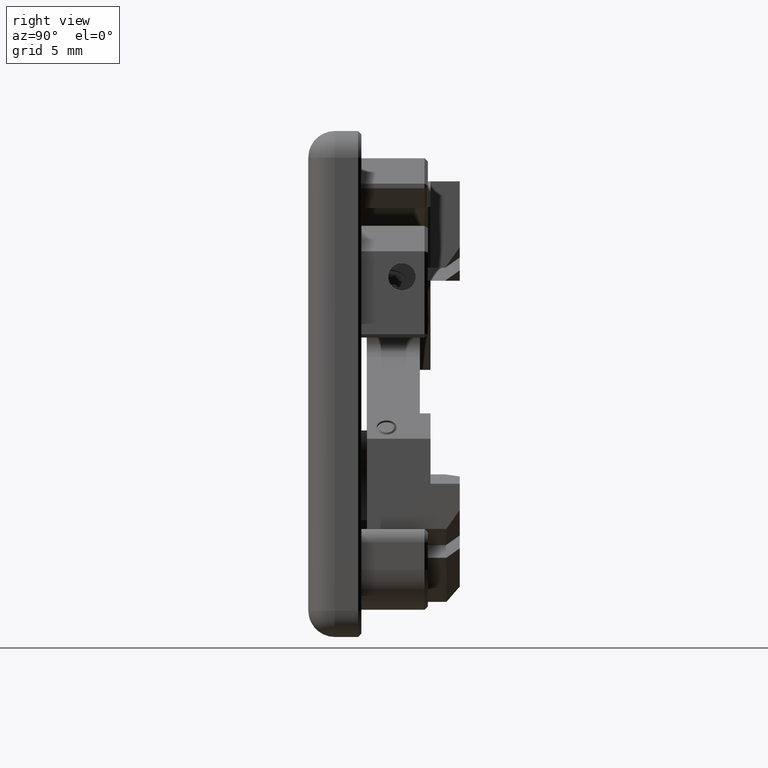
[diagram: clean part render]
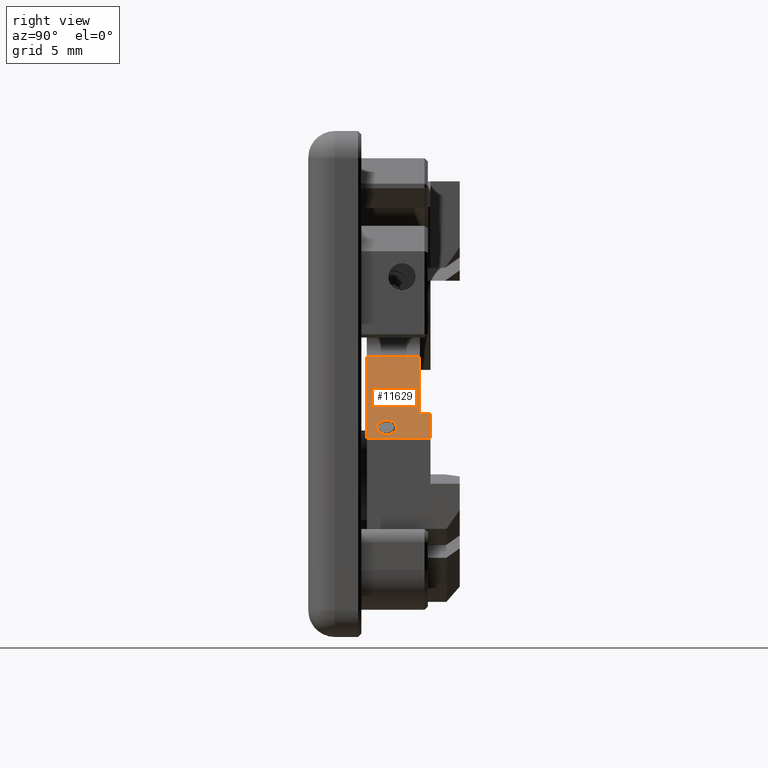
[diagram: same view with one face highlighted and labeled with its STEP entity id]
A machine part, right view. The second image highlights one B-rep face of the part: STEP entity #11629.
In plain terms, the highlighted planar face has unit normal (-0.7071, 0, -0.7071).
Its self-contained STEP definition (entity closure, byte-faithful):
#36 = DIRECTION ( 'NONE',  ( 0.7071067811865474617, 0.000000000000000000, -0.7071067811865474617 ) ) ;
#190 = VECTOR ( 'NONE', #11203, 1000.000000000000000 ) ;
#207 = EDGE_CURVE ( 'NONE', #4128, #1632, #8062, .T. ) ;
#562 = VERTEX_POINT ( 'NONE', #2173 ) ;
#704 = ORIENTED_EDGE ( 'NONE', *, *, #1941, .F. ) ;
#847 = VERTEX_POINT ( 'NONE', #11308 ) ;
#856 = ORIENTED_EDGE ( 'NONE', *, *, #5945, .T. ) ;
#1158 = VERTEX_POINT ( 'NONE', #3201 ) ;
#1224 = AXIS2_PLACEMENT_3D ( 'NONE', #6619, #6529, #8452 ) ;
#1345 = CARTESIAN_POINT ( 'NONE',  ( 15.25455718367402191, 7.200000000000001954, -4.120168620837286966 ) ) ;
#1401 = AXIS2_PLACEMENT_3D ( 'NONE', #10821, #6219, #5309 ) ;
#1482 = CIRCLE ( 'NONE', #1224, 0.7500000000000001110 ) ;
#1632 = VERTEX_POINT ( 'NONE', #1345 ) ;
#1941 = EDGE_CURVE ( 'NONE', #1158, #4793, #8834, .T. ) ;
#1981 = DIRECTION ( 'NONE',  ( -0.7071067811865474617, 0.000000000000000000, 0.7071067811865474617 ) ) ;
#2173 = CARTESIAN_POINT ( 'NONE',  ( 13.87569896036025696, 3.899999999999999911, -2.741310397523514908 ) ) ;
#2299 = ORIENTED_EDGE ( 'NONE', *, *, #7643, .F. ) ;
#3201 = CARTESIAN_POINT ( 'NONE',  ( 9.102728187351058153, 6.400000000000001243, 2.031660375485679904 ) ) ;
#3203 = CARTESIAN_POINT ( 'NONE',  ( 15.25455718367402369, 2.400000000000001688, -4.120168620837281637 ) ) ;
#3299 = EDGE_CURVE ( 'NONE', #3731, #1632, #4704, .T. ) ;
#3396 = DIRECTION ( 'NONE',  ( 0.000000000000000000, 1.000000000000000000, 0.000000000000000000 ) ) ;
#3568 = AXIS2_PLACEMENT_3D ( 'NONE', #10436, #7589, #1981 ) ;
#3731 = VERTEX_POINT ( 'NONE', #3203 ) ;
#3741 = EDGE_LOOP ( 'NONE', ( #6935, #2299 ) ) ;
#3915 = EDGE_LOOP ( 'NONE', ( #11303, #7673, #704, #856, #7197, #6349 ) ) ;
#4041 = LINE ( 'NONE', #10976, #5059 ) ;
#4128 = VERTEX_POINT ( 'NONE', #8077 ) ;
#4382 = CARTESIAN_POINT ( 'NONE',  ( -2.210980311633702122, 6.400000000000001243, 13.34536887447044329 ) ) ;
#4569 = CARTESIAN_POINT ( 'NONE',  ( 9.102728187351058153, 2.400000000000001688, 2.031660375485683012 ) ) ;
#4704 = LINE ( 'NONE', #10365, #8903 ) ;
#4793 = VERTEX_POINT ( 'NONE', #9451 ) ;
#5059 = VECTOR ( 'NONE', #36, 1000.000000000000114 ) ;
#5309 = DIRECTION ( 'NONE',  ( -0.7071067811865472397, 0.000000000000000000, 0.7071067811865477948 ) ) ;
#5413 = DIRECTION ( 'NONE',  ( 0.7071067811865474617, 0.000000000000000000, -0.7071067811865476838 ) ) ;
#5756 = VERTEX_POINT ( 'NONE', #9827 ) ;
#5777 = VECTOR ( 'NONE', #5413, 1000.000000000000000 ) ;
#5867 = EDGE_CURVE ( 'NONE', #847, #562, #1482, .T. ) ;
#5945 = EDGE_CURVE ( 'NONE', #1158, #5756, #7287, .T. ) ;
#6219 = DIRECTION ( 'NONE',  ( 0.7071067811865475727, 0.000000000000000000, 0.7071067811865475727 ) ) ;
#6349 = ORIENTED_EDGE ( 'NONE', *, *, #3299, .T. ) ;
#6458 = PLANE ( 'NONE',  #3568 ) ;
#6529 = DIRECTION ( 'NONE',  ( 0.7071067811865475727, 0.000000000000000000, 0.7071067811865475727 ) ) ;
#6619 = CARTESIAN_POINT ( 'NONE',  ( 14.40602904625016656, 3.899999999999999911, -3.271640483413425393 ) ) ;
#6801 = CARTESIAN_POINT ( 'NONE',  ( 15.25455718367402191, 7.200000000000001954, -4.120168620837286966 ) ) ;
#6935 = ORIENTED_EDGE ( 'NONE', *, *, #5867, .F. ) ;
#7197 = ORIENTED_EDGE ( 'NONE', *, *, #10580, .T. ) ;
#7198 = EDGE_CURVE ( 'NONE', #4793, #4128, #7966, .T. ) ;
#7218 = CARTESIAN_POINT ( 'NONE',  ( 13.34536887447034204, -20.54013949390892435, -2.210980311633604423 ) ) ;
#7287 = LINE ( 'NONE', #4569, #190 ) ;
#7440 = DIRECTION ( 'NONE',  ( 0.000000000000000000, 1.000000000000000000, 0.000000000000000000 ) ) ;
#7589 = DIRECTION ( 'NONE',  ( -0.7071067811865475727, 0.000000000000000000, -0.7071067811865475727 ) ) ;
#7643 = EDGE_CURVE ( 'NONE', #562, #847, #7954, .T. ) ;
#7673 = ORIENTED_EDGE ( 'NONE', *, *, #7198, .F. ) ;
#7909 = FACE_BOUND ( 'NONE', #3741, .T. ) ;
#7954 = CIRCLE ( 'NONE', #1401, 0.7500000000000001110 ) ;
#7966 = LINE ( 'NONE', #7218, #8838 ) ;
#8062 = LINE ( 'NONE', #6801, #8793 ) ;
#8077 = CARTESIAN_POINT ( 'NONE',  ( 13.34536887447034204, 7.200000000000001954, -2.210980311633604423 ) ) ;
#8452 = DIRECTION ( 'NONE',  ( -0.7071067811865472397, 0.000000000000000000, 0.7071067811865477948 ) ) ;
#8773 = FACE_OUTER_BOUND ( 'NONE', #3915, .T. ) ;
#8793 = VECTOR ( 'NONE', #11419, 1000.000000000000000 ) ;
#8834 = LINE ( 'NONE', #4382, #5777 ) ;
#8838 = VECTOR ( 'NONE', #3396, 1000.000000000000000 ) ;
#8903 = VECTOR ( 'NONE', #7440, 1000.000000000000000 ) ;
#9451 = CARTESIAN_POINT ( 'NONE',  ( 13.34536887447034204, 6.400000000000001243, -2.210980311633604423 ) ) ;
#9827 = CARTESIAN_POINT ( 'NONE',  ( 9.102728187351058153, 2.400000000000001688, 2.031660375485683012 ) ) ;
#10365 = CARTESIAN_POINT ( 'NONE',  ( 15.25455718367402191, 2.400000000000001688, -4.120168620837286966 ) ) ;
#10436 = CARTESIAN_POINT ( 'NONE',  ( 18.64866973336945222, 9.400000000000002132, -7.514281170532710163 ) ) ;
#10580 = EDGE_CURVE ( 'NONE', #5756, #3731, #4041, .T. ) ;
#10821 = CARTESIAN_POINT ( 'NONE',  ( 14.40602904625016656, 3.899999999999999911, -3.271640483413425393 ) ) ;
#10976 = CARTESIAN_POINT ( 'NONE',  ( 18.64866973336945222, 2.400000000000001688, -7.514281170532710163 ) ) ;
#11203 = DIRECTION ( 'NONE',  ( 7.666467083416870691E-17, -1.000000000000000000, -7.666467083416870691E-17 ) ) ;
#11303 = ORIENTED_EDGE ( 'NONE', *, *, #207, .F. ) ;
#11308 = CARTESIAN_POINT ( 'NONE',  ( 14.93635913214007793, 3.899999999999999911, -3.801970569303337655 ) ) ;
#11419 = DIRECTION ( 'NONE',  ( 0.7071067811865473507, 0.000000000000000000, -0.7071067811865477948 ) ) ;
#11629 = ADVANCED_FACE ( 'NONE', ( #7909, #8773 ), #6458, .F. ) ;